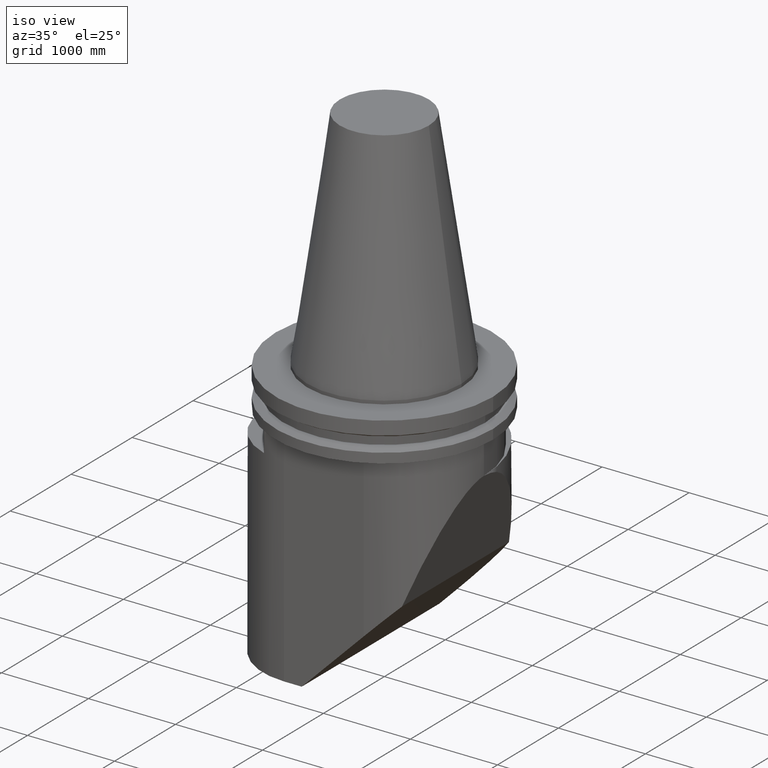
[diagram: clean part render]
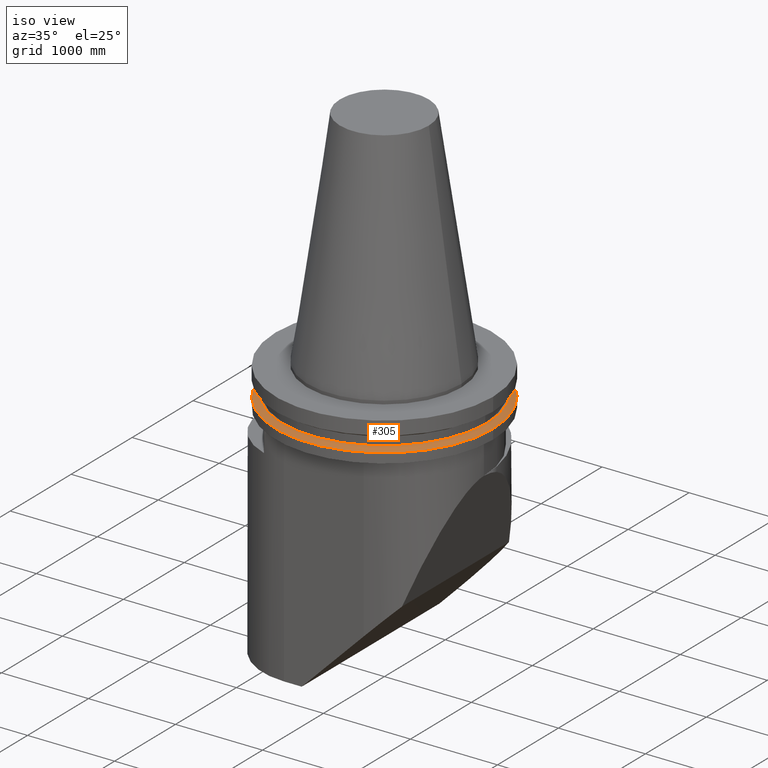
[diagram: same view with one face highlighted and labeled with its STEP entity id]
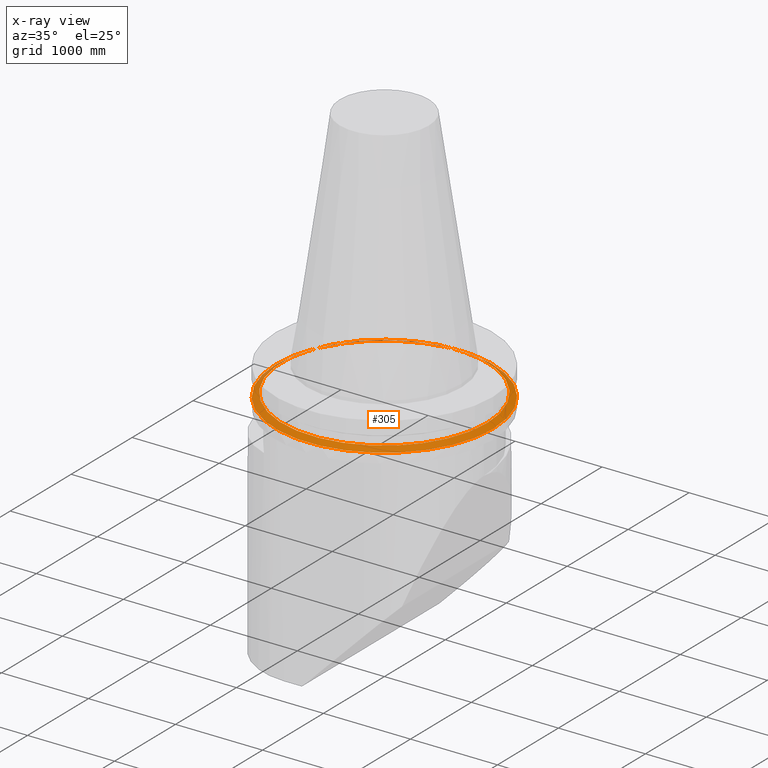
[diagram: x-ray of the same camera — body ghosted, the highlighted face saturated]
A machine part, iso view. The second image highlights one B-rep face of the part: STEP entity #305.
The next image is the same camera in x-ray: the body ghosted, the highlighted face saturated — about 8% of this face is hidden behind the body in this view.
In plain terms, the highlighted conical surface has half-angle 60 deg.
Its self-contained STEP definition (entity closure, byte-faithful):
#199=EDGE_CURVE('Unnamed[1]',#481,#481,#482,.T.);
#305=ADVANCED_FACE('Unnamed[1]',(#618,#619),#620,.T.);
#316=EDGE_CURVE('Unnamed[1]',#633,#633,#634,.T.);
#481=VERTEX_POINT('',#842);
#482=CIRCLE('',#843,49.2125);
#618=FACE_BOUND('',#1081,.T.);
#619=FACE_BOUND('',#1082,.T.);
#620=CONICAL_SURFACE('',#1083,47.821518775,1.04719755103023);
#633=VERTEX_POINT('',#1102);
#634=CIRCLE('',#1103,46.43053755);
#842=CARTESIAN_POINT('',(49.2125,-2.19905947737966E-014,-14.64616677));
#843=AXIS2_PLACEMENT_3D('',#1296,#1297,#1298);
#1081=EDGE_LOOP('',(#1459));
#1082=EDGE_LOOP('',(#1460));
#1083=AXIS2_PLACEMENT_3D('',#1461,#1462,#1463);
#1102=CARTESIAN_POINT('',(46.43053755,-2.06998229306985E-014,-13.04));
#1103=AXIS2_PLACEMENT_3D('',#1479,#1480,#1481);
#1296=CARTESIAN_POINT('',(1.79363812546588E-015,-8.96819062732943E-016,-14.64616677));
#1297=DIRECTION('',(1.22464679914735E-016,-6.12323399573677E-017,-1.0));
#1298=DIRECTION('',(1.0,-4.28626379701574E-016,1.22464679914735E-016));
#1459=ORIENTED_EDGE('',*,*,#199,.F.);
#1460=ORIENTED_EDGE('',*,*,#316,.T.);
#1461=CARTESIAN_POINT('',(1.69528877577702E-015,-8.47644387888509E-016,-13.843083385));
#1462=DIRECTION('',(1.22464679914735E-016,-6.12323399573677E-017,-1.0));
#1463=DIRECTION('',(1.0,-4.28626379701574E-016,1.22464679914735E-016));
#1479=CARTESIAN_POINT('',(1.59693942608815E-015,-7.98469713044075E-016,-13.04));
#1480=DIRECTION('',(1.22464679914735E-016,-6.12323399573677E-017,-1.0));
#1481=DIRECTION('',(1.0,-4.28626379701574E-016,1.22464679914735E-016));